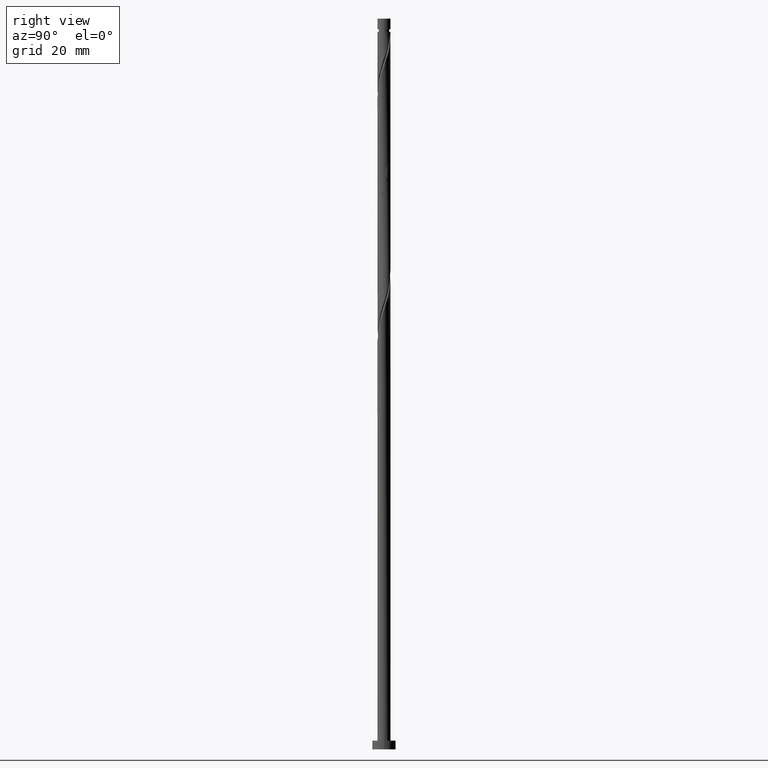
[diagram: clean part render]
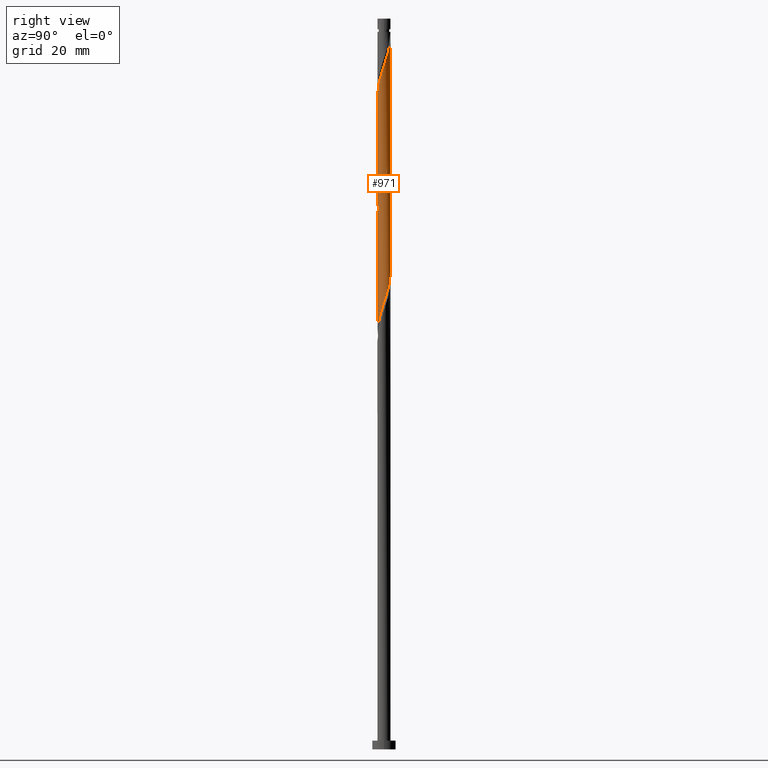
[diagram: same view with one face highlighted and labeled with its STEP entity id]
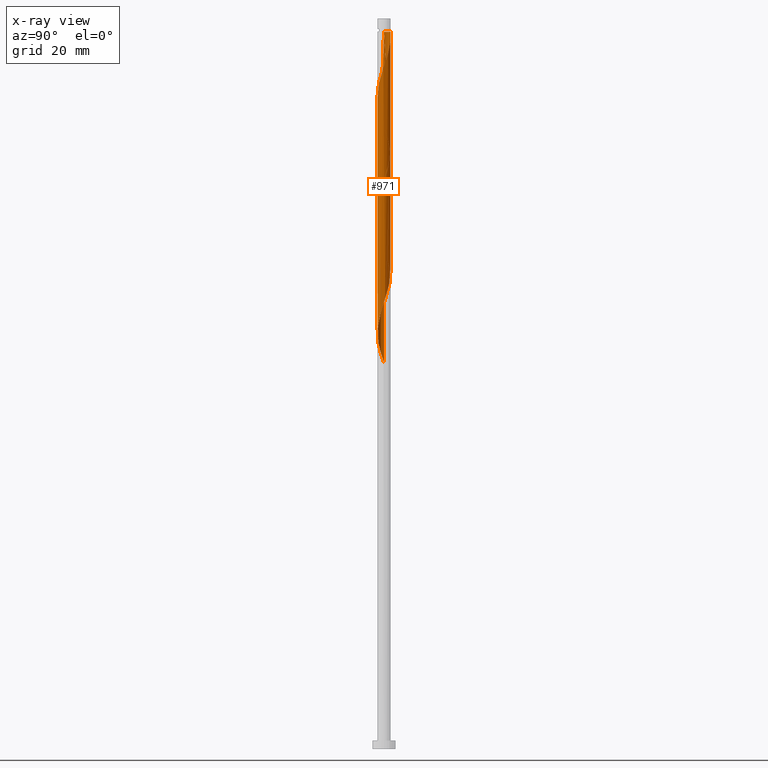
[diagram: x-ray of the same camera — body ghosted, the highlighted face saturated]
A machine part, right view. The second image highlights one B-rep face of the part: STEP entity #971.
The next image is the same camera in x-ray: the body ghosted, the highlighted face saturated — about 0% of this face is hidden behind the body in this view.
In plain terms, the highlighted cylindrical surface (bore or boss wall) has radius 2.25 mm, axis along (-0, -0, -1).
Its self-contained STEP definition (entity closure, byte-faithful):
#2 = CARTESIAN_POINT ( 'NONE',  ( -1.797326917357240150, -1.353556778322624110, 136.5083671796436704 ) ) ;
#3 = ORIENTED_EDGE ( 'NONE', *, *, #1365, .T. ) ;
#13 = CARTESIAN_POINT ( 'NONE',  ( -1.127044005484666878, 1.947375621111931521, 208.6237517950282552 ) ) ;
#24 = CARTESIAN_POINT ( 'NONE',  ( 2.134953450232146110, -0.7102631662573094529, 150.9314441027205476 ) ) ;
#51 = CARTESIAN_POINT ( 'NONE',  ( 2.069027203202810750, -0.8840963931646669272, 231.0596492309258281 ) ) ;
#53 = CARTESIAN_POINT ( 'NONE',  ( -2.249999999999982236, 0.000000000000000000, 245.4827261540026768 ) ) ;
#58 = CARTESIAN_POINT ( 'NONE',  ( -1.363498215478761377, -1.810527702787224413, 219.0404184616949976 ) ) ;
#66 = CARTESIAN_POINT ( 'NONE',  ( 0.4477443466979810216, 2.205000000000000515, 162.1493928206693340 ) ) ;
#72 = CARTESIAN_POINT ( 'NONE',  ( -0.4477443466980407516, 2.205000000000758131, 245.4827261540026768 ) ) ;
#76 = DIRECTION ( 'NONE',  ( -1.000000000000000000, 0.000000000000000000, 0.000000000000000000 ) ) ;
#78 = CARTESIAN_POINT ( 'NONE',  ( 0.7154798197030651785, -2.150633993447379488, 225.4506748719514349 ) ) ;
#85 = CIRCLE ( 'NONE', #311, 2.249999999999982236 ) ;
#86 = LINE ( 'NONE', #96, #512 ) ;
#89 = CARTESIAN_POINT ( 'NONE',  ( 1.632975368929374671, -1.571791777126895440, 228.6558030770796108 ) ) ;
#96 = CARTESIAN_POINT ( 'NONE',  ( -2.250000000000000000, 0.000000000000000000, 250.0000000000000000 ) ) ;
#113 = CARTESIAN_POINT ( 'NONE',  ( 0.8905897954905744873, -2.084223539436639960, 145.3224697437463249 ) ) ;
#118 = CARTESIAN_POINT ( 'NONE',  ( -0.4477443466980407516, 2.205000000000758131, 245.4827261540026768 ) ) ;
#126 = CARTESIAN_POINT ( 'NONE',  ( 0.6282566646206226846, -2.160507709627478512, 144.5211876924641956 ) ) ;
#136 = CARTESIAN_POINT ( 'NONE',  ( -0.7154798197030660667, -2.150633993447376380, 140.5147774360540041 ) ) ;
#144 = CARTESIAN_POINT ( 'NONE',  ( -1.757165075297675516, 1.431610577052242483, 211.0275979488745293 ) ) ;
#155 = CARTESIAN_POINT ( 'NONE',  ( -2.176375940620508764, -0.6328710068109728581, 134.1045210257975953 ) ) ;
#198 = CARTESIAN_POINT ( 'NONE',  ( 1.757165075297675072, -1.431610577052243594, 190.1942646155412433 ) ) ;
#199 = CARTESIAN_POINT ( 'NONE',  ( -2.048711887975463775, -0.9694934482717043611, 215.8352902565668217 ) ) ;
#208 = CARTESIAN_POINT ( 'NONE',  ( 0.6282566646206226846, -2.160507709627478512, 186.1878543591308812 ) ) ;
#209 = CARTESIAN_POINT ( 'NONE',  ( 0.4477443466979807996, -2.205000000000003180, 224.6493928206693909 ) ) ;
#214 = EDGE_CURVE ( 'NONE', #688, #1718, #699, .T. ) ;
#219 = CARTESIAN_POINT ( 'NONE',  ( -1.127044005484669320, -1.947375621111933519, 219.8417005129771269 ) ) ;
#228 = CARTESIAN_POINT ( 'NONE',  ( -0.8905897954905752645, 2.084223539436639960, 166.1558030770796108 ) ) ;
#229 = CARTESIAN_POINT ( 'NONE',  ( 1.902938481636571311, 1.200552012661973977, 237.4699056411822085 ) ) ;
#236 = CARTESIAN_POINT ( 'NONE',  ( -0.4477443466979808551, -2.205000000000000515, 182.9827261540027052 ) ) ;
#241 = ORIENTED_EDGE ( 'NONE', *, *, #948, .T. ) ;
#244 = CARTESIAN_POINT ( 'NONE',  ( -0.09295733002888713348, 2.248078943185470191, 205.4186235899000792 ) ) ;
#254 = CARTESIAN_POINT ( 'NONE',  ( 1.127044005484666656, -1.947375621111931521, 146.1237517950283689 ) ) ;
#265 = CARTESIAN_POINT ( 'NONE',  ( 1.961678465785108294, 1.135321779518355223, 198.2070851283616832 ) ) ;
#276 = CARTESIAN_POINT ( 'NONE',  ( 1.757165075297675072, -1.431610577052243594, 148.5275979488745293 ) ) ;
#287 = CARTESIAN_POINT ( 'NONE',  ( -0.4477443466979808551, -2.205000000000000515, 141.3160594873360196 ) ) ;
#311 = AXIS2_PLACEMENT_3D ( 'NONE', #1004, #1130, #76 ) ;
#317 = CARTESIAN_POINT ( 'NONE',  ( 1.209369679255420493, -1.916914949879465091, 227.0532389745155797 ) ) ;
#325 = CARTESIAN_POINT ( 'NONE',  ( -0.09295733002888832697, -2.248078943185473744, 223.0468287181052744 ) ) ;
#333 = CARTESIAN_POINT ( 'NONE',  ( -2.250000000000000888, 6.206714491313878419E-16, 215.5606480298945939 ) ) ;
#340 = CARTESIAN_POINT ( 'NONE',  ( 2.221195012488831999, -0.4510328842429139340, 193.3993928206693909 ) ) ;
#349 = CARTESIAN_POINT ( 'NONE',  ( 2.134953450232146110, -0.7102631662573094529, 192.5981107693873184 ) ) ;
#357 = CARTESIAN_POINT ( 'NONE',  ( -2.134953450232146555, 0.7102631662573091198, 171.7647774360539188 ) ) ;
#358 = CARTESIAN_POINT ( 'NONE',  ( 2.221195012488833775, 0.4510328842429133789, 235.0660594873359912 ) ) ;
#368 = DIRECTION ( 'NONE',  ( -0.000000000000000000, -0.000000000000000000, -1.000000000000000000 ) ) ;
#375 = CARTESIAN_POINT ( 'NONE',  ( -2.220483148606111623, -0.3632555391956091007, 133.3032389745155228 ) ) ;
#378 = CARTESIAN_POINT ( 'NONE',  ( 0.000000000000000000, 0.000000000000000000, 250.0000000000000000 ) ) ;
#386 = CARTESIAN_POINT ( 'NONE',  ( -2.048711887975461110, 0.9694934482717039170, 212.6301620514386457 ) ) ;
#396 = CARTESIAN_POINT ( 'NONE',  ( 1.797326917357240150, 1.353556778322623666, 199.0083671796436704 ) ) ;
#411 = CARTESIAN_POINT ( 'NONE',  ( -2.250000000000000888, 6.206714491313878419E-16, 215.5606480298945939 ) ) ;
#418 = VERTEX_POINT ( 'NONE', #333 ) ;
#421 = CARTESIAN_POINT ( 'NONE',  ( 2.242892684540272796, -0.1786964063313354056, 152.5340082052847208 ) ) ;
#483 = CARTESIAN_POINT ( 'NONE',  ( -0.6282566646206226846, 2.160507709627478512, 165.3545210257975384 ) ) ;
#484 = CARTESIAN_POINT ( 'NONE',  ( 2.176375940620510985, -0.6328710068109751896, 231.8609312822078437 ) ) ;
#495 = DIRECTION ( 'NONE',  ( -0.000000000000000000, -0.000000000000000000, -1.000000000000000000 ) ) ;
#502 = CARTESIAN_POINT ( 'NONE',  ( -2.176375940620508764, -0.6328710068109728581, 175.7711876924642525 ) ) ;
#511 = CARTESIAN_POINT ( 'NONE',  ( -1.797326917357240150, -1.353556778322624110, 178.1750338463103560 ) ) ;
#512 = VECTOR ( 'NONE', #734, 1000.000000000000000 ) ;
#522 = CARTESIAN_POINT ( 'NONE',  ( -2.250000000000000888, 2.721980813058135221E-15, 132.2273146965612511 ) ) ;
#533 = CARTESIAN_POINT ( 'NONE',  ( 1.632975368929373783, 1.571791777126893219, 158.1429825642590856 ) ) ;
#544 = CARTESIAN_POINT ( 'NONE',  ( 1.797326917357240150, 1.353556778322623666, 157.3417005129770416 ) ) ;
#555 = CARTESIAN_POINT ( 'NONE',  ( -0.8905897954905752645, 2.084223539436639960, 207.8224697437462964 ) ) ;
#562 = CARTESIAN_POINT ( 'NONE',  ( -0.1800088736928966981, -2.259366006552623762, 142.1173415386181205 ) ) ;
#588 = CARTESIAN_POINT ( 'NONE',  ( 2.220483148606113399, -0.3632555391956108215, 232.6622133334899161 ) ) ;
#597 = CARTESIAN_POINT ( 'NONE',  ( 0.9624247494792431690, -2.033774471663422290, 226.2519569232334788 ) ) ;
#601 = EDGE_CURVE ( 'NONE', #1700, #786, #1376, .T. ) ;
#604 = CARTESIAN_POINT ( 'NONE',  ( 0.7154798197030662887, 2.150633993447376380, 161.3481107693872900 ) ) ;
#605 = CARTESIAN_POINT ( 'NONE',  ( -1.560331645388220112, -1.621069139919734337, 218.2391364104129536 ) ) ;
#611 = CARTESIAN_POINT ( 'NONE',  ( 0.09295733002888968699, 2.248078943185473300, 243.8801620514386741 ) ) ;
#615 = CARTESIAN_POINT ( 'NONE',  ( -2.048711887975461110, 0.9694934482717039170, 170.9634953847719032 ) ) ;
#619 = CARTESIAN_POINT ( 'NONE',  ( 1.363498215478762932, 1.810527702787223303, 239.8737517950283120 ) ) ;
#630 = CARTESIAN_POINT ( 'NONE',  ( 1.363498215478759157, -1.810527702787223081, 188.5917005129770985 ) ) ;
#639 = CARTESIAN_POINT ( 'NONE',  ( -2.250000000000003109, 1.794712623994364604E-16, 212.9048042781108165 ) ) ;
#641 = CARTESIAN_POINT ( 'NONE',  ( -1.421172524092396472, -1.744353363503177379, 179.7775979488744440 ) ) ;
#643 = DIRECTION ( 'NONE',  ( -1.000000000000000000, 0.000000000000000000, 0.000000000000000000 ) ) ;
#660 = CARTESIAN_POINT ( 'NONE',  ( 1.209369679255421159, 1.916914949879461538, 201.4122133334898592 ) ) ;
#669 = CARTESIAN_POINT ( 'NONE',  ( 1.560331645388217225, -1.621069139919732782, 147.7263158975923716 ) ) ;
#678 = CARTESIAN_POINT ( 'NONE',  ( 2.048711887975461110, -0.9694934482717035840, 150.1301620514386173 ) ) ;
#687 = CARTESIAN_POINT ( 'NONE',  ( -0.9624247494792432800, -2.033774471663417849, 139.7134953847719032 ) ) ;
#688 = VERTEX_POINT ( 'NONE', #890 ) ;
#699 =( BOUNDED_CURVE ( )  B_SPLINE_CURVE ( 2, ( #639, #1525, #724, #869, #1385, #199, #1405, #1529, #605, #58, #219, #751, #1397, #1272, #325, #1657, #209, #78, #597, #317, #1279, #89, #1123, #847, #51, #484, #588, #1647, #1114, #358, #1415, #888, #229, #761, #1544, #619, #1652, #1379, #739, #881, #611, #1019, #72 ),
 .UNSPECIFIED., .F., .T. ) 
 B_SPLINE_CURVE_WITH_KNOTS ( ( 3, 2, 2, 2, 2, 2, 2, 2, 2, 2, 2, 2, 2, 2, 2, 2, 2, 2, 2, 2, 2, 3 ),
 ( 0.5545271625973835494, 0.5576923076923077094, 0.5673076923076922906, 0.5769230769230768718, 0.5865384615384615641, 0.5961538461538461453, 0.6057692307692308376, 0.6153846153846154188, 0.6250000000000000000, 0.6346153846153845812, 0.6442307692307691624, 0.6538461538461538547, 0.6634615384615384359, 0.6730769230769231282, 0.6826923076923077094, 0.6923076923076922906, 0.7019230769230768718, 0.7115384615384615641, 0.7211538461538461453, 0.7307692307692308376, 0.7403846153846154188, 0.7500000000000000000 ),
 .UNSPECIFIED. ) 
 CURVE ( )  GEOMETRIC_REPRESENTATION_ITEM ( )  RATIONAL_B_SPLINE_CURVE ( ( 0.9061636035683021673, 0.9069090390690908166, 0.9090909090909472523, 0.9024626128164506822, 0.9090909090909472523, 0.9024626128164506822, 0.9090909090909472523, 0.9024626128164506822, 0.9090909090909472523, 0.9024626128164506822, 0.9090909090909472523, 0.9024626128164506822, 0.9090909090909472523, 0.9024626128164506822, 0.9090909090909472523, 0.9024626128164506822, 0.9090909090909472523, 0.9024626128164506822, 0.9090909090909472523, 0.9024626128164506822, 0.9090909090909472523, 0.9024626128164506822, 0.9090909090909472523, 0.9024626128164506822, 0.9090909090909472523, 0.9024626128164506822, 0.9090909090909472523, 0.9024626128164506822, 0.9090909090909472523, 0.9024626128164506822, 0.9090909090909472523, 0.9024626128164506822, 0.9090909090909472523, 0.9024626128164506822, 0.9090909090909472523, 0.9024626128164506822, 0.9090909090909472523, 0.9024626128164506822, 0.9090909090909472523, 0.9024626128164506822, 0.9090909090909472523, 0.9024626128164506822, 0.9090909090909472523 ) ) 
 REPRESENTATION_ITEM ( '' )  );
#713 = DIRECTION ( 'NONE',  ( -0.000000000000000000, -0.000000000000000000, -1.000000000000000000 ) ) ;
#724 = CARTESIAN_POINT ( 'NONE',  ( -2.242892684540275461, -0.1786964063313333517, 213.4314441027206328 ) ) ;
#734 = DIRECTION ( 'NONE',  ( -0.000000000000000000, -0.000000000000000000, -1.000000000000000000 ) ) ;
#739 = CARTESIAN_POINT ( 'NONE',  ( 0.6282566646206253491, 2.160507709627481177, 242.2775979488745577 ) ) ;
#743 = CARTESIAN_POINT ( 'NONE',  ( 1.902938481636567980, -1.200552012661973089, 190.9955466668231452 ) ) ;
#750 = CARTESIAN_POINT ( 'NONE',  ( 2.250000000000000888, 2.602333304791843294E-15, 194.7273146965612227 ) ) ;
#751 = CARTESIAN_POINT ( 'NONE',  ( -0.8905897954905765967, -2.084223539436641737, 220.6429825642590856 ) ) ;
#755 = AXIS2_PLACEMENT_3D ( 'NONE', #378, #495, #643 ) ;
#761 = CARTESIAN_POINT ( 'NONE',  ( 1.757165075297677959, 1.431610577052242483, 238.2711876924642809 ) ) ;
#770 = CARTESIAN_POINT ( 'NONE',  ( -0.7154798197030660667, -2.150633993447376380, 182.1814441027206612 ) ) ;
#773 = CYLINDRICAL_SURFACE ( 'NONE', #755, 2.250000000000000000 ) ;
#777 = ORIENTED_EDGE ( 'NONE', *, *, #601, .T. ) ;
#780 = CARTESIAN_POINT ( 'NONE',  ( 0.4477443466979810216, 2.205000000000000515, 203.8160594873360196 ) ) ;
#786 = VERTEX_POINT ( 'NONE', #1025 ) ;
#789 = CARTESIAN_POINT ( 'NONE',  ( 0.09295733002888645347, -2.248078943185470191, 142.9186235899001360 ) ) ;
#799 = CARTESIAN_POINT ( 'NONE',  ( 2.069027203202807641, 0.8840963931646641516, 197.4058030770796393 ) ) ;
#806 = EDGE_LOOP ( 'NONE', ( #1561, #3, #1210, #241, #1452, #1411, #777, #1643 ) ) ;
#810 = CARTESIAN_POINT ( 'NONE',  ( -2.134953450232146555, 0.7102631662573091198, 213.4314441027206612 ) ) ;
#812 = CARTESIAN_POINT ( 'NONE',  ( -2.250000000000000888, 2.721980813058135221E-15, 132.2273146965612511 ) ) ;
#818 = CARTESIAN_POINT ( 'NONE',  ( 2.264590356591714482, 0.09364007158024507949, 153.3352902565668217 ) ) ;
#826 = CARTESIAN_POINT ( 'NONE',  ( 2.250000000000001332, 0.1828269867083470168, 195.2670154339095347 ) ) ;
#847 = CARTESIAN_POINT ( 'NONE',  ( 1.961678465785108960, -1.135321779518358776, 230.2583671796437557 ) ) ;
#860 = CARTESIAN_POINT ( 'NONE',  ( -0.3659235337506705488, 2.236791879818317508, 164.5532389745155513 ) ) ;
#868 = CARTESIAN_POINT ( 'NONE',  ( -2.069027203202807641, -0.8840963931646644847, 176.5724697437462112 ) ) ;
#869 = CARTESIAN_POINT ( 'NONE',  ( -2.221195012488833775, -0.4510328842429137119, 214.2327261540027052 ) ) ;
#876 = CARTESIAN_POINT ( 'NONE',  ( 1.127044005484666656, -1.947375621111931521, 187.7904184616950261 ) ) ;
#881 = CARTESIAN_POINT ( 'NONE',  ( 0.3659235337506721586, 2.236791879818319284, 243.0788800001565733 ) ) ;
#886 = CARTESIAN_POINT ( 'NONE',  ( 1.560331645388217225, -1.621069139919732782, 189.3929825642591140 ) ) ;
#888 = CARTESIAN_POINT ( 'NONE',  ( 2.048711887975464219, 0.9694934482717033619, 236.6686235899001645 ) ) ;
#890 = CARTESIAN_POINT ( 'NONE',  ( -2.250000000000003109, 1.794712623994364604E-16, 212.9048042781108165 ) ) ;
#891 = CARTESIAN_POINT ( 'NONE',  ( 2.250000000000000000, 2.755455298081544285E-16, 245.4827261540026768 ) ) ;
#896 = CARTESIAN_POINT ( 'NONE',  ( 2.250000000000000000, -0.08948954325773481044, 194.4631437809282204 ) ) ;
#906 = CARTESIAN_POINT ( 'NONE',  ( -1.363498215478759379, 1.810527702787222637, 209.4250338463103844 ) ) ;
#917 = CARTESIAN_POINT ( 'NONE',  ( 0.1800088736928962541, 2.259366006552623762, 204.6173415386181205 ) ) ;
#927 = VECTOR ( 'NONE', #368, 1000.000000000000000 ) ;
#939 = CARTESIAN_POINT ( 'NONE',  ( -2.242892684540271908, 0.1786964063313341289, 215.0340082052846924 ) ) ;
#948 = EDGE_CURVE ( 'NONE', #688, #1038, #1132, .T. ) ;
#950 = CARTESIAN_POINT ( 'NONE',  ( 0.3659235337506696606, -2.236791879818317508, 143.7199056411822085 ) ) ;
#957 = CARTESIAN_POINT ( 'NONE',  ( 2.176375940620509652, 0.6328710068109717479, 196.6045210257976237 ) ) ;
#971 = ADVANCED_FACE ( 'NONE', ( #1169 ), #773, .T. ) ;
#1004 = CARTESIAN_POINT ( 'NONE',  ( 0.000000000000000000, 0.000000000000000000, 245.4827261540026768 ) ) ;
#1019 = CARTESIAN_POINT ( 'NONE',  ( -0.1800088736928948108, 2.259366006552627315, 244.6814441027206612 ) ) ;
#1022 = CARTESIAN_POINT ( 'NONE',  ( 2.242892684540272796, -0.1786964063313354056, 194.2006748719513496 ) ) ;
#1025 = CARTESIAN_POINT ( 'NONE',  ( 2.250000000000000888, 2.602333304791843294E-15, 194.7273146965612227 ) ) ;
#1031 = CARTESIAN_POINT ( 'NONE',  ( 0.3659235337506696606, -2.236791879818317508, 185.3865723078488656 ) ) ;
#1038 = VERTEX_POINT ( 'NONE', #812 ) ;
#1041 = CARTESIAN_POINT ( 'NONE',  ( -1.757165075297675516, 1.431610577052242483, 169.3609312822078152 ) ) ;
#1045 =( BOUNDED_CURVE ( )  B_SPLINE_CURVE ( 2, ( #411, #1704, #939, #1466, #810, #386, #1333, #144, #1475, #906, #13, #555, #1434, #1060, #244, #917, #780, #1306, #1442, #660, #1185, #1587, #396, #265, #799, #957, #1224, #826, #1484 ),
 .UNSPECIFIED., .F., .T. ) 
 B_SPLINE_CURVE_WITH_KNOTS ( ( 3, 2, 2, 2, 2, 2, 2, 2, 2, 2, 2, 2, 2, 2, 3 ),
 ( 0.4295271625973832719, 0.4326923076923077094, 0.4423076923076922906, 0.4519230769230769273, 0.4615384615384615641, 0.4711538461538461453, 0.4807692307692307820, 0.4903846153846153633, 0.5000000000000000000, 0.5096153846153845812, 0.5192307692307692735, 0.5288461538461538547, 0.5384615384615384359, 0.5480769230769231282, 0.5545271625973834384 ),
 .UNSPECIFIED. ) 
 CURVE ( )  GEOMETRIC_REPRESENTATION_ITEM ( )  RATIONAL_B_SPLINE_CURVE ( ( 0.9061636035682969492, 0.9069090390690857095, 0.9090909090909423673, 0.9024626128164456862, 0.9090909090909423673, 0.9024626128164456862, 0.9090909090909423673, 0.9024626128164456862, 0.9090909090909423673, 0.9024626128164456862, 0.9090909090909423673, 0.9024626128164456862, 0.9090909090909423673, 0.9024626128164456862, 0.9090909090909423673, 0.9024626128164456862, 0.9090909090909423673, 0.9024626128164456862, 0.9090909090909423673, 0.9024626128164456862, 0.9090909090909423673, 0.9024626128164456862, 0.9090909090909423673, 0.9024626128164456862, 0.9090909090909423673, 0.9024626128164456862, 0.9090909090909423673, 0.9046444828383022330, 0.9061636035682971713 ) ) 
 REPRESENTATION_ITEM ( '' )  );
#1050 = CARTESIAN_POINT ( 'NONE',  ( -1.209369679255420937, -1.916914949879461538, 138.9122133334898876 ) ) ;
#1060 = CARTESIAN_POINT ( 'NONE',  ( -0.3659235337506705488, 2.236791879818317508, 206.2199056411822085 ) ) ;
#1069 = CARTESIAN_POINT ( 'NONE',  ( -2.069027203202807641, -0.8840963931646644847, 134.9058030770796108 ) ) ;
#1077 = CARTESIAN_POINT ( 'NONE',  ( 2.069027203202807641, 0.8840963931646641516, 155.7391364104129252 ) ) ;
#1089 = CARTESIAN_POINT ( 'NONE',  ( -1.421172524092396472, -1.744353363503177379, 138.1109312822078152 ) ) ;
#1114 = CARTESIAN_POINT ( 'NONE',  ( 2.242892684540275461, 0.1786964063313325746, 234.2647774360540325 ) ) ;
#1123 = CARTESIAN_POINT ( 'NONE',  ( 1.797326917357241927, -1.353556778322627663, 229.4570851283616832 ) ) ;
#1130 = DIRECTION ( 'NONE',  ( -0.000000000000000000, -0.000000000000000000, -1.000000000000000000 ) ) ;
#1132 = LINE ( 'NONE', #1274, #927 ) ;
#1139 = CARTESIAN_POINT ( 'NONE',  ( -1.363498215478759379, 1.810527702787222637, 167.7583671796436988 ) ) ;
#1149 = CARTESIAN_POINT ( 'NONE',  ( -1.902938481636567980, 1.200552012661972867, 170.1622133334898592 ) ) ;
#1160 = CARTESIAN_POINT ( 'NONE',  ( -0.1800088736928966981, -2.259366006552623762, 183.7840082052847492 ) ) ;
#1166 = CARTESIAN_POINT ( 'NONE',  ( -1.632975368929373339, -1.571791777126893219, 178.9763158975924000 ) ) ;
#1169 = FACE_OUTER_BOUND ( 'NONE', #806, .T. ) ;
#1176 = CARTESIAN_POINT ( 'NONE',  ( 2.220483148606111623, 0.3632555391956092672, 154.1365723078488088 ) ) ;
#1185 = CARTESIAN_POINT ( 'NONE',  ( 1.421172524092397804, 1.744353363503176491, 200.6109312822077868 ) ) ;
#1194 = CARTESIAN_POINT ( 'NONE',  ( 1.961678465785108294, 1.135321779518355223, 156.5404184616949976 ) ) ;
#1204 = CARTESIAN_POINT ( 'NONE',  ( 0.9624247494792443902, 2.033774471663417849, 160.5468287181052176 ) ) ;
#1210 = ORIENTED_EDGE ( 'NONE', *, *, #214, .F. ) ;
#1215 = CARTESIAN_POINT ( 'NONE',  ( 2.176375940620509652, 0.6328710068109717479, 154.9378543591309096 ) ) ;
#1224 = CARTESIAN_POINT ( 'NONE',  ( 2.220483148606111623, 0.3632555391956092672, 195.8032389745154944 ) ) ;
#1259 = CARTESIAN_POINT ( 'NONE',  ( 0.1800088736928962541, 2.259366006552623762, 162.9506748719513780 ) ) ;
#1270 = CARTESIAN_POINT ( 'NONE',  ( -2.264590356591714482, -0.09364007158024599542, 174.1686235899001645 ) ) ;
#1272 = CARTESIAN_POINT ( 'NONE',  ( -0.3659235337506719365, -2.236791879818319284, 222.2455466668232020 ) ) ;
#1274 = CARTESIAN_POINT ( 'NONE',  ( -2.250000000000000000, 0.000000000000000000, 250.0000000000000000 ) ) ;
#1278 = CARTESIAN_POINT ( 'NONE',  ( -2.220483148606111623, -0.3632555391956091007, 174.9699056411821516 ) ) ;
#1279 = CARTESIAN_POINT ( 'NONE',  ( 1.421172524092398470, -1.744353363503180265, 227.8545210257975668 ) ) ;
#1295 = CARTESIAN_POINT ( 'NONE',  ( -0.9624247494792432800, -2.033774471663417849, 181.3801620514386173 ) ) ;
#1306 = CARTESIAN_POINT ( 'NONE',  ( 0.7154798197030662887, 2.150633993447376380, 203.0147774360539472 ) ) ;
#1313 = CARTESIAN_POINT ( 'NONE',  ( 1.363498215478759157, -1.810527702787223081, 146.9250338463103844 ) ) ;
#1322 = CARTESIAN_POINT ( 'NONE',  ( -1.961678465785107184, -1.135321779518356555, 135.7070851283616832 ) ) ;
#1333 = CARTESIAN_POINT ( 'NONE',  ( -1.902938481636567980, 1.200552012661972867, 211.8288800001565448 ) ) ;
#1343 = CARTESIAN_POINT ( 'NONE',  ( 1.902938481636567980, -1.200552012661973089, 149.3288800001565448 ) ) ;
#1365 = EDGE_CURVE ( 'NONE', #1653, #1718, #85, .T. ) ;
#1368 = CARTESIAN_POINT ( 'NONE',  ( 2.250000000000000000, 2.755455298081544285E-16, 250.0000000000000000 ) ) ;
#1376 = LINE ( 'NONE', #1368, #1384 ) ;
#1379 = CARTESIAN_POINT ( 'NONE',  ( 0.8905897954905769298, 2.084223539436641737, 241.4763158975924853 ) ) ;
#1383 = CARTESIAN_POINT ( 'NONE',  ( -0.09295733002888713348, 2.248078943185470191, 163.7519569232334504 ) ) ;
#1384 = VECTOR ( 'NONE', #713, 1000.000000000000000 ) ;
#1385 = CARTESIAN_POINT ( 'NONE',  ( -2.134953450232150107, -0.7102631662573087867, 215.0340082052848061 ) ) ;
#1390 = EDGE_CURVE ( 'NONE', #1653, #418, #86, .T. ) ;
#1396 = CARTESIAN_POINT ( 'NONE',  ( -2.221195012488831999, 0.4510328842429137675, 172.5660594873359912 ) ) ;
#1397 = CARTESIAN_POINT ( 'NONE',  ( -0.6282566646206242389, -2.160507709627481177, 221.4442646155412149 ) ) ;
#1404 = CARTESIAN_POINT ( 'NONE',  ( 0.09295733002888645347, -2.248078943185470191, 184.5852902565667648 ) ) ;
#1405 = CARTESIAN_POINT ( 'NONE',  ( -1.902938481636571311, -1.200552012661973755, 216.6365723078488656 ) ) ;
#1411 = ORIENTED_EDGE ( 'NONE', *, *, #601, .F. ) ;
#1414 = CARTESIAN_POINT ( 'NONE',  ( -1.560331645388217225, 1.621069139919732782, 168.5596492309257144 ) ) ;
#1415 = CARTESIAN_POINT ( 'NONE',  ( 2.134953450232150107, 0.7102631662573077875, 235.8673415386181205 ) ) ;
#1425 = EDGE_CURVE ( 'NONE', #786, #1038, #1585, .T. ) ;
#1434 = CARTESIAN_POINT ( 'NONE',  ( -0.6282566646206226846, 2.160507709627478512, 207.0211876924642525 ) ) ;
#1442 = CARTESIAN_POINT ( 'NONE',  ( 0.9624247494792443902, 2.033774471663417849, 202.2134953847718464 ) ) ;
#1448 = EDGE_CURVE ( 'NONE', #418, #786, #1045, .T. ) ;
#1452 = ORIENTED_EDGE ( 'NONE', *, *, #1425, .F. ) ;
#1455 = CARTESIAN_POINT ( 'NONE',  ( 2.221195012488831999, -0.4510328842429139340, 151.7327261540026768 ) ) ;
#1466 = CARTESIAN_POINT ( 'NONE',  ( -2.221195012488831999, 0.4510328842429137675, 214.2327261540027052 ) ) ;
#1475 = CARTESIAN_POINT ( 'NONE',  ( -1.560331645388217225, 1.621069139919732782, 210.2263158975924568 ) ) ;
#1484 = CARTESIAN_POINT ( 'NONE',  ( 2.250000000000000888, 2.602333304791843294E-15, 194.7273146965612227 ) ) ;
#1525 = CARTESIAN_POINT ( 'NONE',  ( -2.250000000000003109, -0.08948954325773605945, 213.1689751937438189 ) ) ;
#1529 = CARTESIAN_POINT ( 'NONE',  ( -1.757165075297677292, -1.431610577052243372, 217.4378543591308528 ) ) ;
#1535 = CARTESIAN_POINT ( 'NONE',  ( -1.961678465785107184, -1.135321779518356555, 177.3737517950283404 ) ) ;
#1544 = CARTESIAN_POINT ( 'NONE',  ( 1.560331645388220112, 1.621069139919734114, 239.0724697437463249 ) ) ;
#1561 = ORIENTED_EDGE ( 'NONE', *, *, #1390, .F. ) ;
#1566 = CARTESIAN_POINT ( 'NONE',  ( 0.8905897954905744873, -2.084223539436639960, 186.9891364104129536 ) ) ;
#1575 = CARTESIAN_POINT ( 'NONE',  ( -1.632975368929373339, -1.571791777126893219, 137.3096492309257712 ) ) ;
#1585 =( BOUNDED_CURVE ( )  B_SPLINE_CURVE ( 2, ( #750, #896, #1022, #340, #349, #1656, #743, #198, #886, #630, #876, #1566, #208, #1031, #1404, #1160, #236, #770, #1295, #1693, #641, #1166, #511, #1535, #868, #502, #1278, #1270, #1685, #1396, #357, #615, #1149, #1041, #1414, #1139, #1666, #228, #483, #860, #1383, #1259, #66, #604, #1204, #1607, #1713, #533, #544, #1194, #1077, #1215, #1176, #818, #421, #1455, #24, #678, #1343, #276, #669, #1313, #254, #113, #126, #950, #789, #562, #287, #136, #687, #1050, #1089, #1575, #2, #1322, #1069, #155, #375, #1598, #522 ),
 .UNSPECIFIED., .F., .T. ) 
 B_SPLINE_CURVE_WITH_KNOTS ( ( 3, 2, 2, 2, 2, 2, 2, 2, 2, 2, 2, 2, 2, 2, 2, 2, 2, 2, 2, 2, 2, 2, 2, 2, 2, 2, 2, 2, 2, 2, 2, 2, 2, 2, 2, 2, 2, 2, 2, 2, 3 ),
 ( 0.5545271625973834384, 0.5576923076923077094, 0.5673076923076922906, 0.5769230769230768718, 0.5865384615384615641, 0.5961538461538461453, 0.6057692307692307265, 0.6153846153846154188, 0.6250000000000000000, 0.6346153846153845812, 0.6442307692307692735, 0.6538461538461538547, 0.6634615384615384359, 0.6730769230769231282, 0.6826923076923077094, 0.6923076923076922906, 0.7019230769230768718, 0.7115384615384615641, 0.7211538461538461453, 0.7307692307692307265, 0.7403846153846154188, 0.7500000000000000000, 0.7596153846153845812, 0.7692307692307692735, 0.7788461538461538547, 0.7884615384615384359, 0.7980769230769231282, 0.8076923076923077094, 0.8173076923076922906, 0.8269230769230768718, 0.8365384615384615641, 0.8461538461538461453, 0.8557692307692307265, 0.8653846153846154188, 0.8750000000000000000, 0.8846153846153845812, 0.8942307692307692735, 0.9038461538461539657, 0.9134615384615385469, 0.9230769230769231282, 0.9295271625973833274 ),
 .UNSPECIFIED. ) 
 CURVE ( )  GEOMETRIC_REPRESENTATION_ITEM ( )  RATIONAL_B_SPLINE_CURVE ( ( 0.9061636035682971713, 0.9069090390690859316, 0.9090909090909423673, 0.9024626128164456862, 0.9090909090909423673, 0.9024626128164456862, 0.9090909090909423673, 0.9024626128164456862, 0.9090909090909423673, 0.9024626128164456862, 0.9090909090909423673, 0.9024626128164456862, 0.9090909090909423673, 0.9024626128164456862, 0.9090909090909423673, 0.9024626128164456862, 0.9090909090909423673, 0.9024626128164456862, 0.9090909090909423673, 0.9024626128164456862, 0.9090909090909423673, 0.9024626128164456862, 0.9090909090909423673, 0.9024626128164456862, 0.9090909090909423673, 0.9024626128164456862, 0.9090909090909423673, 0.9024626128164456862, 0.9090909090909423673, 0.9024626128164456862, 0.9090909090909423673, 0.9024626128164456862, 0.9090909090909423673, 0.9024626128164456862, 0.9090909090909423673, 0.9024626128164456862, 0.9090909090909423673, 0.9024626128164456862, 0.9090909090909423673, 0.9024626128164456862, 0.9090909090909423673, 0.9024626128164456862, 0.9090909090909423673, 0.9024626128164456862, 0.9090909090909423673, 0.9024626128164456862, 0.9090909090909423673, 0.9024626128164456862, 0.9090909090909423673, 0.9024626128164456862, 0.9090909090909423673, 0.9024626128164456862, 0.9090909090909423673, 0.9024626128164456862, 0.9090909090909423673, 0.9024626128164456862, 0.9090909090909423673, 0.9024626128164456862, 0.9090909090909423673, 0.9024626128164456862, 0.9090909090909423673, 0.9024626128164456862, 0.9090909090909423673, 0.9024626128164456862, 0.9090909090909423673, 0.9024626128164456862, 0.9090909090909423673, 0.9024626128164456862, 0.9090909090909423673, 0.9024626128164456862, 0.9090909090909423673, 0.9024626128164456862, 0.9090909090909423673, 0.9024626128164456862, 0.9090909090909423673, 0.9024626128164456862, 0.9090909090909423673, 0.9024626128164456862, 0.9090909090909423673, 0.9046444828383023440, 0.9061636035682970602 ) ) 
 REPRESENTATION_ITEM ( '' )  );
#1587 = CARTESIAN_POINT ( 'NONE',  ( 1.632975368929373783, 1.571791777126893219, 199.8096492309257997 ) ) ;
#1598 = CARTESIAN_POINT ( 'NONE',  ( -2.250000000000001332, -0.1828269867083506528, 132.7670154339095632 ) ) ;
#1607 = CARTESIAN_POINT ( 'NONE',  ( 1.209369679255421159, 1.916914949879461538, 159.7455466668232305 ) ) ;
#1643 = ORIENTED_EDGE ( 'NONE', *, *, #1448, .F. ) ;
#1647 = CARTESIAN_POINT ( 'NONE',  ( 2.264590356591717146, -0.09364007158024638400, 233.4634953847719032 ) ) ;
#1652 = CARTESIAN_POINT ( 'NONE',  ( 1.127044005484669764, 1.947375621111933519, 240.6750338463103844 ) ) ;
#1653 = VERTEX_POINT ( 'NONE', #53 ) ;
#1656 = CARTESIAN_POINT ( 'NONE',  ( 2.048711887975461110, -0.9694934482717035840, 191.7968287181053313 ) ) ;
#1657 = CARTESIAN_POINT ( 'NONE',  ( 0.1800088736928951438, -2.259366006552627315, 223.8481107693872900 ) ) ;
#1666 = CARTESIAN_POINT ( 'NONE',  ( -1.127044005484666878, 1.947375621111931521, 166.9570851283616548 ) ) ;
#1685 = CARTESIAN_POINT ( 'NONE',  ( -2.242892684540271908, 0.1786964063313341289, 173.3673415386180920 ) ) ;
#1693 = CARTESIAN_POINT ( 'NONE',  ( -1.209369679255420937, -1.916914949879461538, 180.5788800001566301 ) ) ;
#1700 = VERTEX_POINT ( 'NONE', #891 ) ;
#1704 = CARTESIAN_POINT ( 'NONE',  ( -2.250000000000001332, 0.08948954325772952301, 215.2964771142616200 ) ) ;
#1713 = CARTESIAN_POINT ( 'NONE',  ( 1.421172524092397804, 1.744353363503176491, 158.9442646155411580 ) ) ;
#1718 = VERTEX_POINT ( 'NONE', #118 ) ;